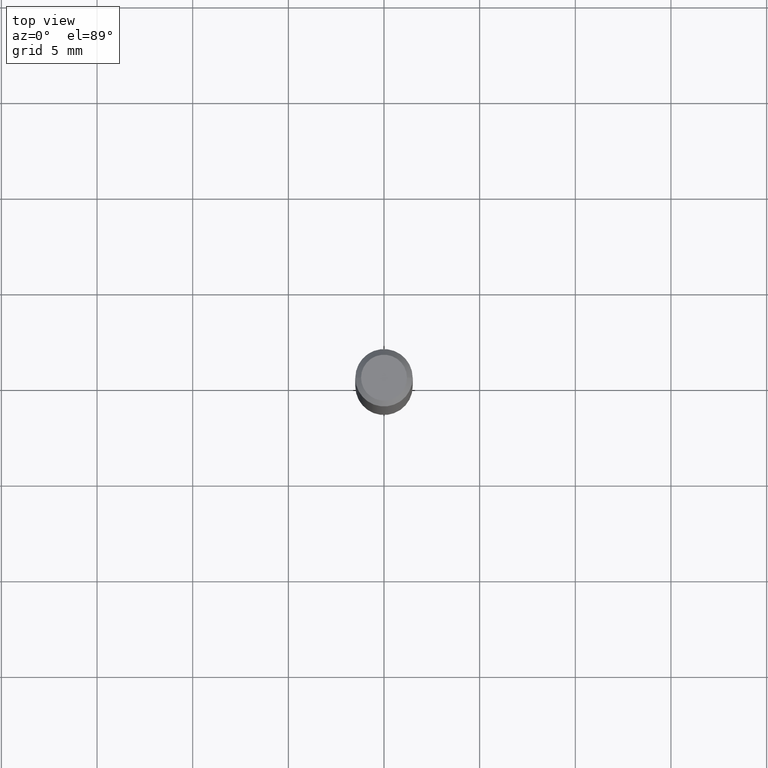
[diagram: clean part render]
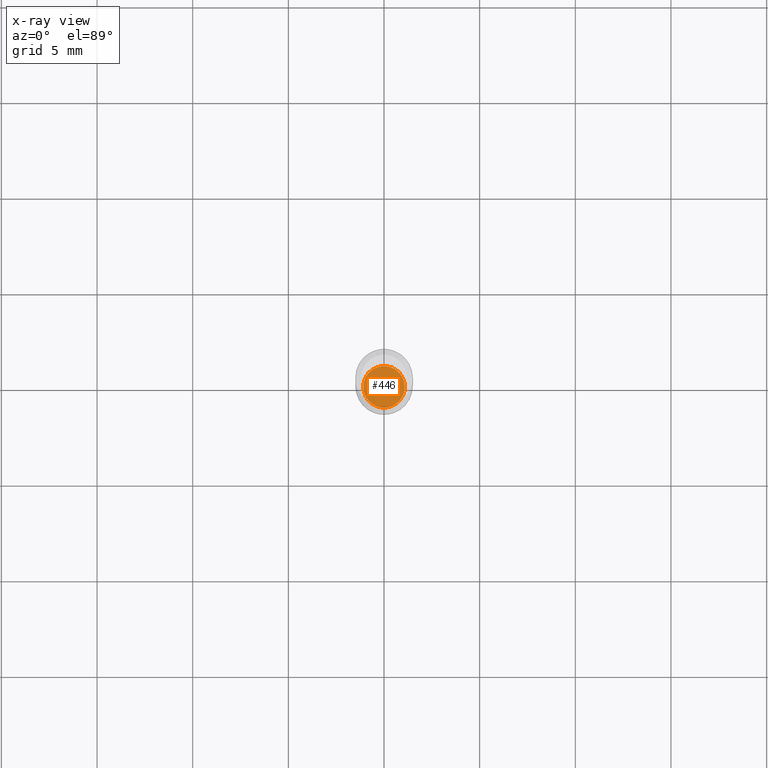
[diagram: x-ray — body ghosted, one internal face saturated and labeled with its STEP entity id]
A machine part, top view, then the same camera in x-ray: the body is ghosted and one INTERNAL B-rep face — a face not visible from any outside direction — is saturated and labeled: STEP entity #446.
In plain terms, the highlighted planar face has unit normal (-0, 0, 1).
Its self-contained STEP definition (entity closure, byte-faithful):
#5 = CARTESIAN_POINT ( 'NONE',  ( 0.04279999999999998389, -4.120297127968795228E-15, -1.094500000000000028 ) ) ;
#26 = EDGE_CURVE ( 'NONE', #146, #451, #363, .T. ) ;
#53 = ORIENTED_EDGE ( 'NONE', *, *, #315, .F. ) ;
#68 = DIRECTION ( 'NONE',  ( -2.445468806185136597E-29, 3.491481338843145583E-15, 1.000000000000000000 ) ) ;
#77 = AXIS2_PLACEMENT_3D ( 'NONE', #171, #371, #118 ) ;
#84 = CARTESIAN_POINT ( 'NONE',  ( 2.676565608369632355E-29, -3.821426325363822773E-15, -1.094500000000000028 ) ) ;
#115 = CIRCLE ( 'NONE', #390, 0.04279999999999998389 ) ;
#118 = DIRECTION ( 'NONE',  ( 1.000000000000000000, -6.982962677686265922E-15, 4.876176775795935793E-29 ) ) ;
#144 = PLANE ( 'NONE',  #77 ) ;
#146 = VERTEX_POINT ( 'NONE', #5 ) ;
#171 = CARTESIAN_POINT ( 'NONE',  ( 2.374170476497901664E-30, -7.314425892029170306E-15, -1.094500000000000028 ) ) ;
#255 = AXIS2_PLACEMENT_3D ( 'NONE', #84, #257, #341 ) ;
#257 = DIRECTION ( 'NONE',  ( -2.445468806185136597E-29, 3.491481338843145583E-15, 1.000000000000000000 ) ) ;
#266 = ORIENTED_EDGE ( 'NONE', *, *, #26, .F. ) ;
#315 = EDGE_CURVE ( 'NONE', #451, #146, #115, .T. ) ;
#329 = CARTESIAN_POINT ( 'NONE',  ( 2.676565608369632355E-29, -3.821426325363822773E-15, -1.094500000000000028 ) ) ;
#341 = DIRECTION ( 'NONE',  ( 1.000000000000000000, -6.982962677686269077E-15, 0.000000000000000000 ) ) ;
#363 = CIRCLE ( 'NONE', #255, 0.04279999999999998389 ) ;
#371 = DIRECTION ( 'NONE',  ( -2.438088387897960049E-29, 3.491481338843145188E-15, 1.000000000000000000 ) ) ;
#390 = AXIS2_PLACEMENT_3D ( 'NONE', #329, #68, #436 ) ;
#392 = EDGE_LOOP ( 'NONE', ( #266, #53 ) ) ;
#404 = CARTESIAN_POINT ( 'NONE',  ( -0.04279999999999998389, -3.514664807284389054E-15, -1.094500000000000028 ) ) ;
#436 = DIRECTION ( 'NONE',  ( 1.000000000000000000, -6.982962677686269077E-15, 0.000000000000000000 ) ) ;
#446 = ADVANCED_FACE ( 'NONE', ( #456 ), #144, .F. ) ;
#451 = VERTEX_POINT ( 'NONE', #404 ) ;
#456 = FACE_OUTER_BOUND ( 'NONE', #392, .T. ) ;